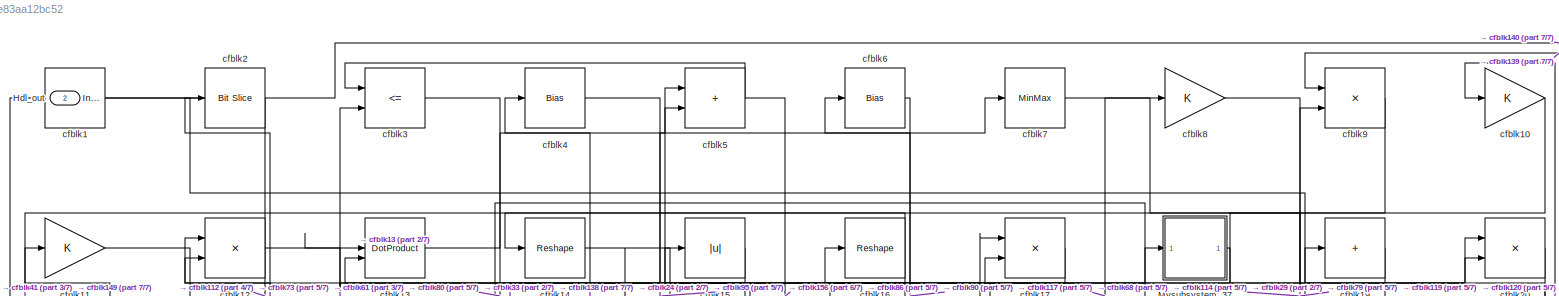
[diagram: root canvas - part 1/7, full width, top band]
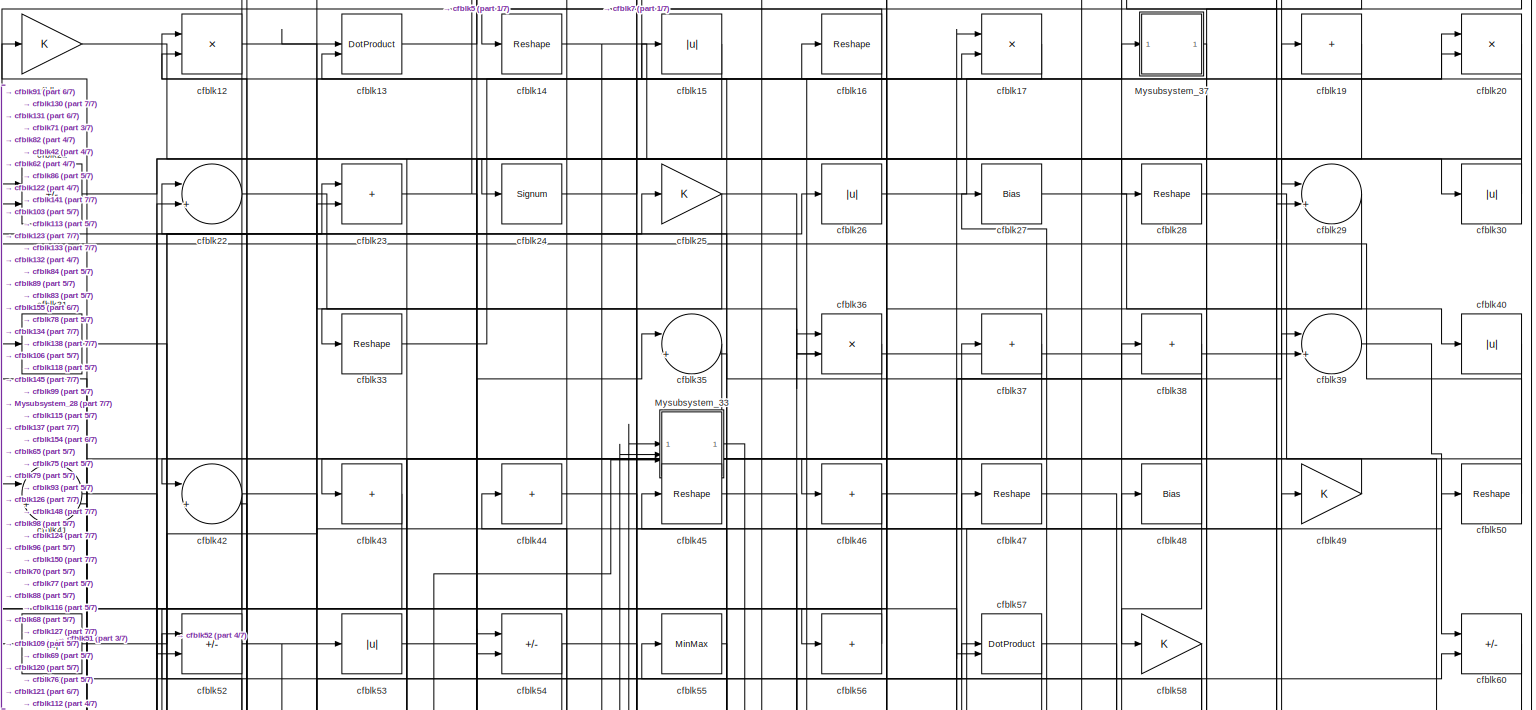
[diagram: root canvas - part 2/7, full width, top band]
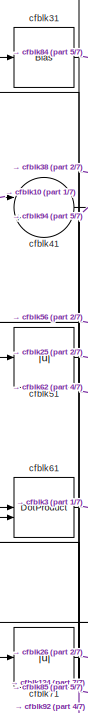
[diagram: root canvas - part 3/7, middle left region]
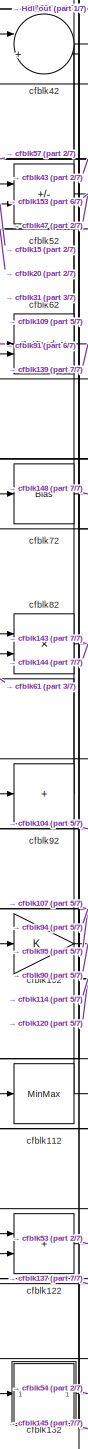
[diagram: root canvas - part 4/7, middle left region]
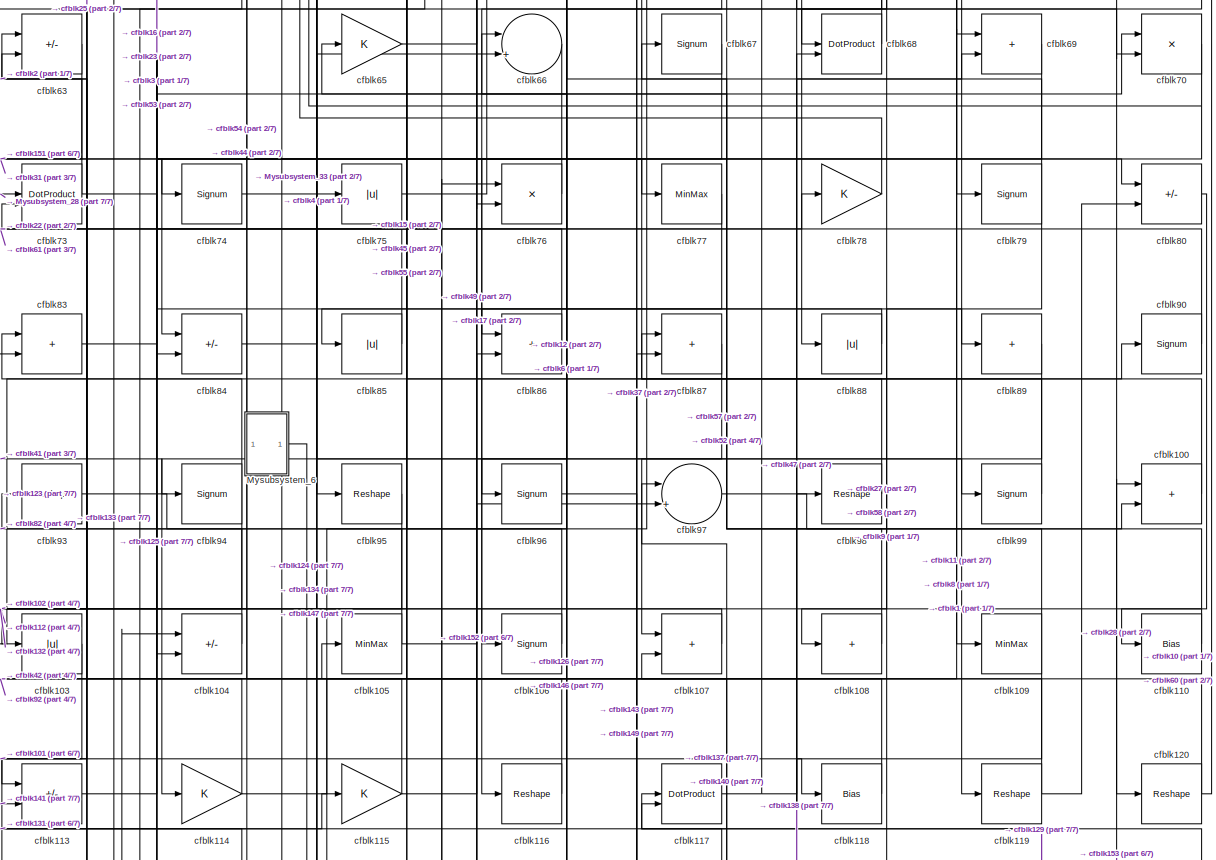
[diagram: root canvas - part 5/7, full width, middle band]
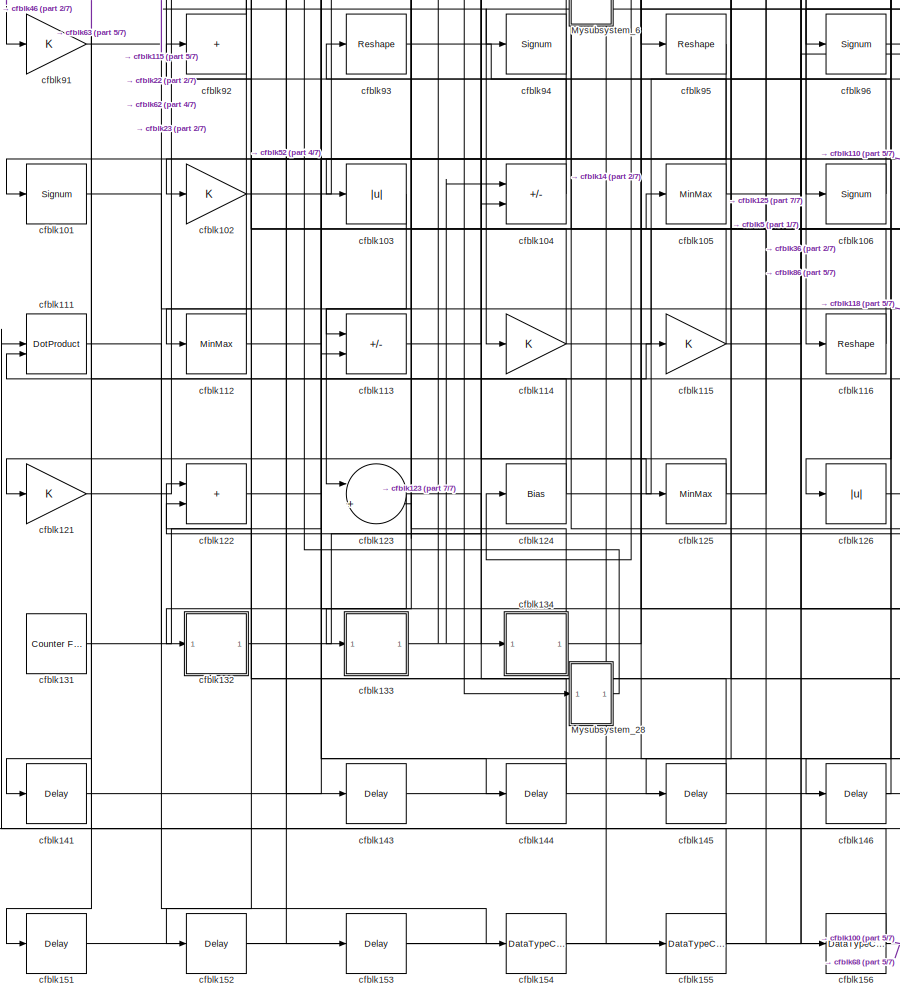
[diagram: root canvas - part 6/7, bottom left region]
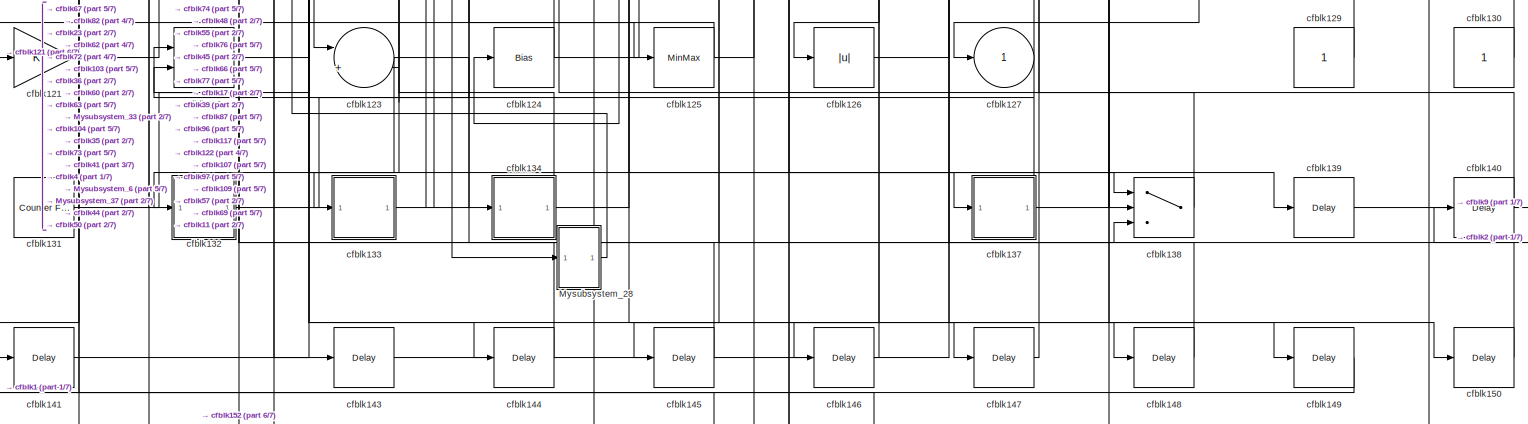
[diagram: root canvas - part 7/7, full width, bottom band]
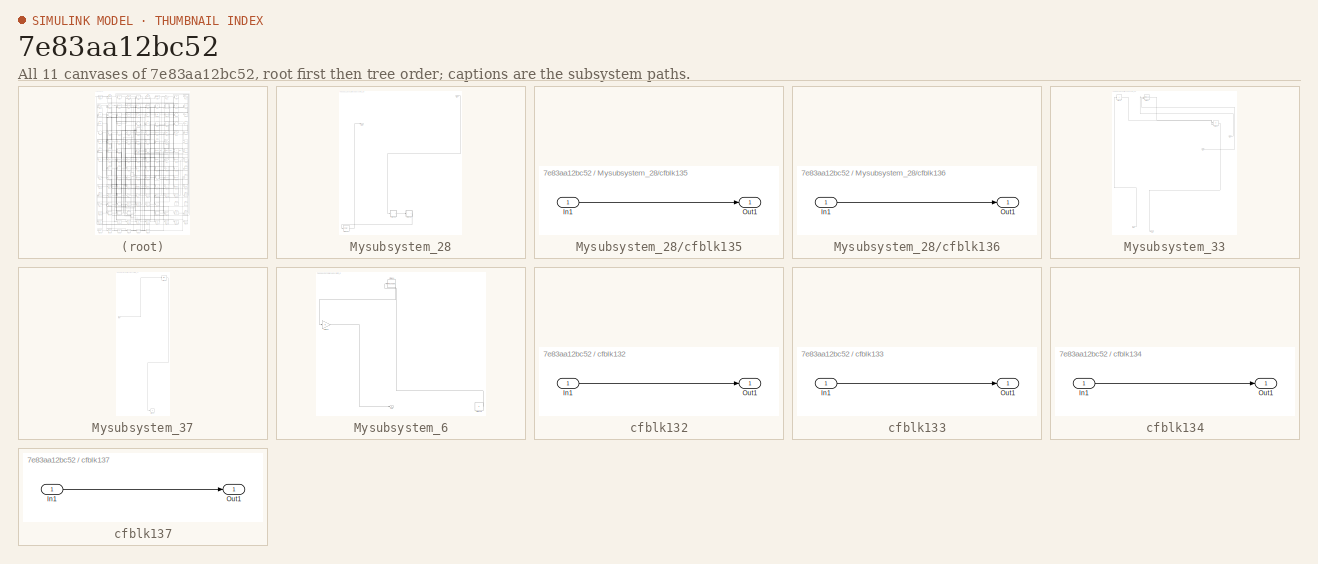
[diagram: thumbnail index - all 11 canvases of the model, root first then tree order]
MODEL slx_7e83aa12bc52
KIND model
CONFIG AbsTol = auto
CONFIG EnableMultiTasking = off
CONFIG FixedStep = auto
CONFIG MaxStep = auto
CONFIG MinStep = auto
CONFIG RelTol = 1e-3
CONFIG SampleTimeConstraint = Unconstrained
CONFIG SolverName = VariableStepAuto
CONFIG StartTime = 0.0
CONFIG StopTime = 10.0
BLOCK [Outport] Hdl_out
  OutDataTypeStr = uint8
  Port = 2
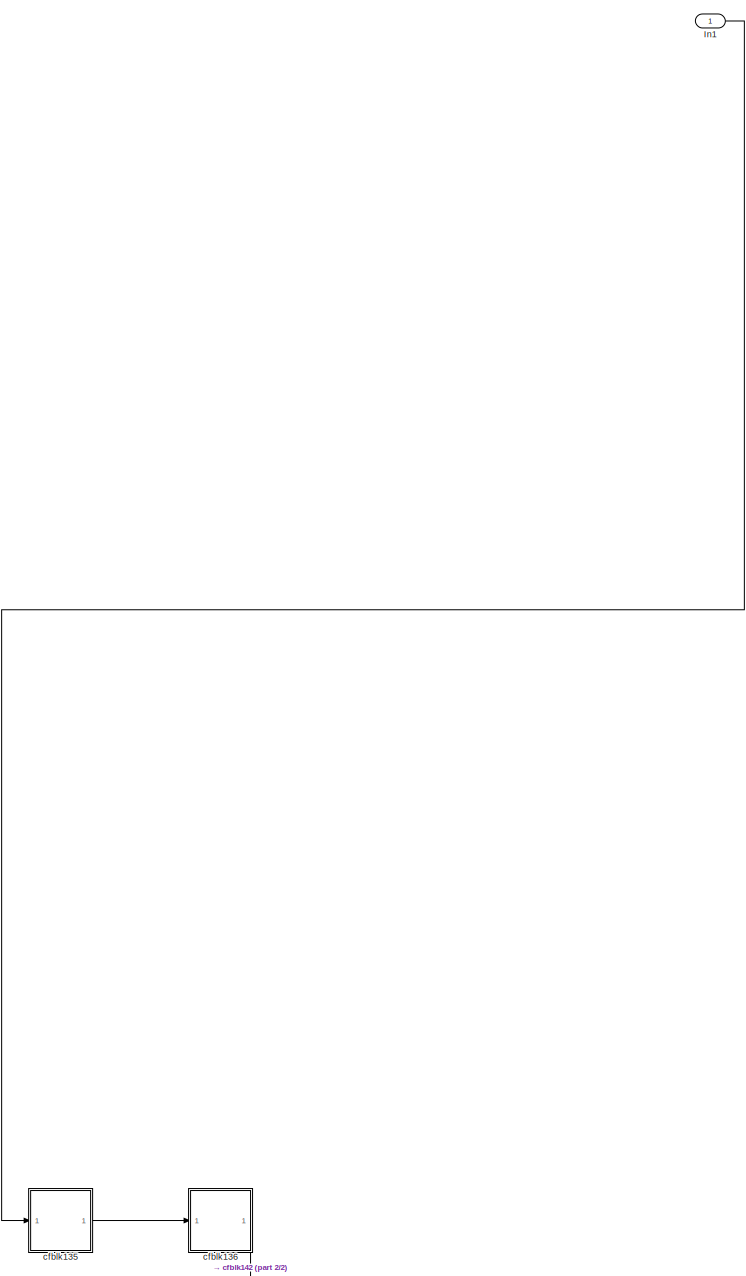
[diagram: Mysubsystem_28 - part 1/2, right side, full height]
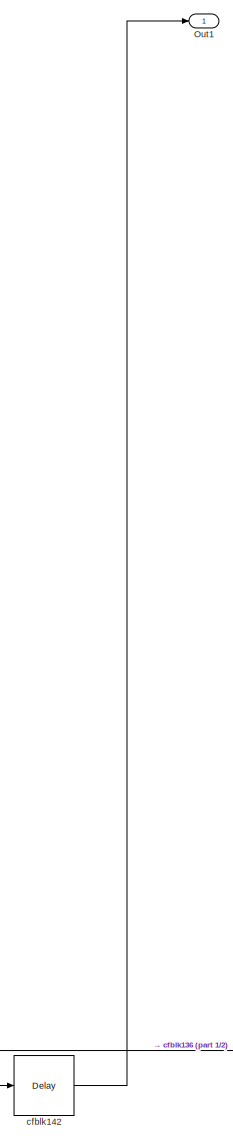
[diagram: Mysubsystem_28 - part 2/2, left side, full height]
BLOCK [SubSystem] Mysubsystem_28
  RTWFcnName = Mysubsystem_28
  RTWFcnNameOpts = User specified
  RTWFileNameOpts = Use function name
  RTWSystemCode = Reusable function
  TreatAsAtomicUnit = on
BLOCK [Inport] Mysubsystem_28/In1
BLOCK [Outport] Mysubsystem_28/Out1
BLOCK [SubSystem] Mysubsystem_28/cfblk135
  LibrarySourceBlock = hdlsllib/Ports &\nSubsystems/Subsystem
BLOCK [Inport] Mysubsystem_28/cfblk135/In1
BLOCK [Outport] Mysubsystem_28/cfblk135/Out1
BLOCK [SubSystem] Mysubsystem_28/cfblk136
  LibrarySourceBlock = hdlsllib/Ports &\nSubsystems/Subsystem
BLOCK [Inport] Mysubsystem_28/cfblk136/In1
BLOCK [Outport] Mysubsystem_28/cfblk136/Out1
BLOCK [Delay] Mysubsystem_28/cfblk142
  InputPortMap = u0
  SampleTime = 1
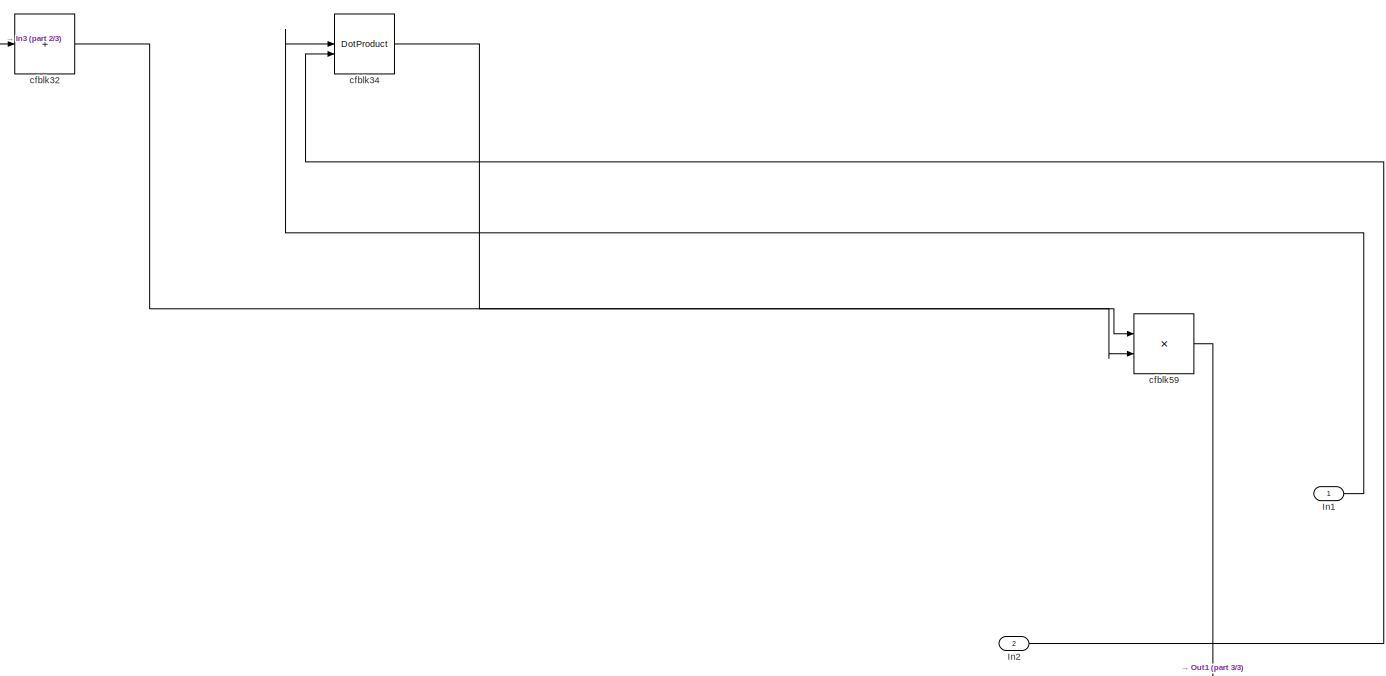
[diagram: Mysubsystem_33 - part 1/3, full width, top band]
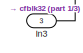
[diagram: Mysubsystem_33 - part 2/3, bottom left region]
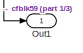
[diagram: Mysubsystem_33 - part 3/3, bottom left region]
BLOCK [SubSystem] Mysubsystem_33
  RTWFcnName = Mysubsystem_33
  RTWFcnNameOpts = User specified
  RTWFileNameOpts = Use function name
  RTWSystemCode = Reusable function
  TreatAsAtomicUnit = on
BLOCK [Inport] Mysubsystem_33/In1
BLOCK [Inport] Mysubsystem_33/In2
  Port = 2
BLOCK [Inport] Mysubsystem_33/In3
  Port = 3
BLOCK [Outport] Mysubsystem_33/Out1
BLOCK [Sum] Mysubsystem_33/cfblk32
  IconShape = rectangular
  Inputs = +
BLOCK [DotProduct] Mysubsystem_33/cfblk34
  OutDataTypeStr = Inherit: Inherit via internal rule
BLOCK [Product] Mysubsystem_33/cfblk59
  Inputs = */
  RndMeth = Zero
  SaturateOnIntegerOverflow = on
BLOCK [SubSystem] Mysubsystem_37
  RTWFcnName = Mysubsystem_37
  RTWFcnNameOpts = User specified
  RTWFileNameOpts = Use function name
  RTWSystemCode = Reusable function
  TreatAsAtomicUnit = on
BLOCK [Inport] Mysubsystem_37/In1
BLOCK [Outport] Mysubsystem_37/cfblk127
  VectorParamsAs1DForOutWhenUnconnected = off
BLOCK [Bias] Mysubsystem_37/cfblk18
  Bias = 0.0
  SaturateOnIntegerOverflow = off
BLOCK [SubSystem] Mysubsystem_6
  RTWFcnName = Mysubsystem_6
  RTWFcnNameOpts = User specified
  RTWFileNameOpts = Use function name
  RTWSystemCode = Reusable function
  TreatAsAtomicUnit = on
BLOCK [Outport] Mysubsystem_6/Out1
BLOCK [Constant] Mysubsystem_6/cfblk128
  SampleTime = -1
BLOCK [Reshape] Mysubsystem_6/cfblk64
BLOCK [Gain] Mysubsystem_6/cfblk81
BLOCK [Reference] cfblk1  REF=simulink/Logic and Bit
Operations/Detect
Increase
  LibrarySourceBlock = hdlsllib/Logic and Bit\nOperations/Detect\nIncrease
  SourceBlock = simulink/Logic and Bit\nOperations/Detect\nIncrease
  SourceType = Detect Increase
BLOCK [Gain] cfblk10
  OutDataTypeStr = uint8
BLOCK [Sum] cfblk100
  IconShape = rectangular
  OutDataTypeStr = uint8
BLOCK [Signum] cfblk101
BLOCK [Gain] cfblk102
  OutDataTypeStr = uint8
BLOCK [Abs] cfblk103
  OutDataTypeStr = uint8
  SaturateOnIntegerOverflow = off
BLOCK [Sum] cfblk104
  IconShape = rectangular
  Inputs = +-
  OutDataTypeStr = uint8
BLOCK [MinMax] cfblk105
  OutDataTypeStr = uint8
BLOCK [Signum] cfblk106
BLOCK [Sum] cfblk107
  IconShape = rectangular
  OutDataTypeStr = uint8
BLOCK [Sum] cfblk108
  IconShape = rectangular
  Inputs = +
  OutDataTypeStr = uint8
BLOCK [MinMax] cfblk109
  OutDataTypeStr = uint8
BLOCK [Gain] cfblk11
  OutDataTypeStr = uint8
BLOCK [Bias] cfblk110
  Bias = 0.0
  SaturateOnIntegerOverflow = off
BLOCK [DotProduct] cfblk111
  OutDataTypeStr = uint8
BLOCK [MinMax] cfblk112
  OutDataTypeStr = uint8
BLOCK [Sum] cfblk113
  IconShape = rectangular
  Inputs = +-
  OutDataTypeStr = uint8
BLOCK [Gain] cfblk114
  OutDataTypeStr = uint8
BLOCK [Gain] cfblk115
  OutDataTypeStr = uint8
BLOCK [Reshape] cfblk116
BLOCK [DotProduct] cfblk117
  OutDataTypeStr = uint8
BLOCK [Bias] cfblk118
  Bias = 0.0
  SaturateOnIntegerOverflow = off
BLOCK [Reshape] cfblk119
BLOCK [Product] cfblk12
  Inputs = */
  OutDataTypeStr = uint8
  RndMeth = Zero
  SaturateOnIntegerOverflow = on
BLOCK [Reshape] cfblk120
BLOCK [Gain] cfblk121
  OutDataTypeStr = uint8
BLOCK [Sum] cfblk122
  IconShape = rectangular
  OutDataTypeStr = uint8
BLOCK [Sum] cfblk123
  Inputs = |++
  OutDataTypeStr = uint8
BLOCK [Bias] cfblk124
  Bias = 0.0
  SaturateOnIntegerOverflow = off
BLOCK [MinMax] cfblk125
  OutDataTypeStr = uint8
BLOCK [Abs] cfblk126
  OutDataTypeStr = uint8
  SaturateOnIntegerOverflow = off
BLOCK [Outport] cfblk127
  OutDataTypeStr = uint8
  VectorParamsAs1DForOutWhenUnconnected = off
BLOCK [Constant] cfblk129
  OutDataTypeStr = uint8
  SampleTime = -1
BLOCK [DotProduct] cfblk13
  OutDataTypeStr = uint8
BLOCK [Constant] cfblk130
  OutDataTypeStr = uint8
  SampleTime = -1
BLOCK [Reference] cfblk131  REF=hdlsllib/Sources/Counter
Free-Running
  SourceBlock = hdlsllib/Sources/Counter\nFree-Running
  SourceType = Counter Free-Running
BLOCK [SubSystem] cfblk132
  LibrarySourceBlock = hdlsllib/Ports &\nSubsystems/Subsystem
BLOCK [Inport] cfblk132/In1
BLOCK [Outport] cfblk132/Out1
BLOCK [SubSystem] cfblk133
  LibrarySourceBlock = hdlsllib/Ports &\nSubsystems/Subsystem
BLOCK [Inport] cfblk133/In1
BLOCK [Outport] cfblk133/Out1
BLOCK [SubSystem] cfblk134
  LibrarySourceBlock = hdlsllib/Ports &\nSubsystems/Subsystem
BLOCK [Inport] cfblk134/In1
BLOCK [Outport] cfblk134/Out1
BLOCK [SubSystem] cfblk137
  LibrarySourceBlock = hdlsllib/Ports &\nSubsystems/Subsystem
BLOCK [Inport] cfblk137/In1
BLOCK [Outport] cfblk137/Out1
BLOCK [Switch] cfblk138
  InputSameDT = off
  OutDataTypeStr = uint8
  SaturateOnIntegerOverflow = off
BLOCK [Delay] cfblk139
  InputPortMap = u0
  SampleTime = 1
BLOCK [Reshape] cfblk14
BLOCK [Delay] cfblk140
  InputPortMap = u0
  SampleTime = 1
BLOCK [Delay] cfblk141
  InputPortMap = u0
  SampleTime = 1
BLOCK [Delay] cfblk143
  InputPortMap = u0
  SampleTime = 1
BLOCK [Delay] cfblk144
  InputPortMap = u0
  SampleTime = 1
BLOCK [Delay] cfblk145
  InputPortMap = u0
  SampleTime = 1
BLOCK [Delay] cfblk146
  InputPortMap = u0
  SampleTime = 1
BLOCK [Delay] cfblk147
  InputPortMap = u0
  SampleTime = 1
BLOCK [Delay] cfblk148
  InputPortMap = u0
  SampleTime = 1
BLOCK [Delay] cfblk149
  InputPortMap = u0
  SampleTime = 1
BLOCK [Abs] cfblk15
  OutDataTypeStr = uint8
  SaturateOnIntegerOverflow = off
BLOCK [Delay] cfblk150
  InputPortMap = u0
  SampleTime = 1
BLOCK [Delay] cfblk151
  InputPortMap = u0
  SampleTime = 1
BLOCK [Delay] cfblk152
  InputPortMap = u0
  SampleTime = 1
BLOCK [Delay] cfblk153
  InputPortMap = u0
  SampleTime = 1
BLOCK [DataTypeConversion] cfblk154
  OutDataTypeStr = uint8
  RndMeth = Floor
  SaturateOnIntegerOverflow = off
BLOCK [DataTypeConversion] cfblk155
  OutDataTypeStr = uint8
  RndMeth = Floor
  SaturateOnIntegerOverflow = off
BLOCK [DataTypeConversion] cfblk156
  OutDataTypeStr = uint8
  RndMeth = Floor
  SaturateOnIntegerOverflow = off
BLOCK [Reshape] cfblk16
BLOCK [Product] cfblk17
  Inputs = */
  OutDataTypeStr = uint8
  RndMeth = Zero
  SaturateOnIntegerOverflow = on
BLOCK [Sum] cfblk19
  IconShape = rectangular
  Inputs = +
  OutDataTypeStr = uint8
BLOCK [Reference] cfblk2  REF=hdlsllib/Logic and Bit
Operations/Bit Slice
  SourceBlock = hdlsllib/Logic and Bit\nOperations/Bit Slice
  SourceType = Bit Slice
BLOCK [Product] cfblk20
  Inputs = */
  OutDataTypeStr = uint8
  RndMeth = Zero
  SaturateOnIntegerOverflow = on
BLOCK [Sum] cfblk21
  IconShape = rectangular
  Inputs = +-
  OutDataTypeStr = uint8
BLOCK [Sum] cfblk22
  Inputs = |++
  OutDataTypeStr = uint8
BLOCK [Sum] cfblk23
  IconShape = rectangular
  OutDataTypeStr = uint8
BLOCK [Signum] cfblk24
BLOCK [Gain] cfblk25
  OutDataTypeStr = uint8
BLOCK [Abs] cfblk26
  OutDataTypeStr = uint8
  SaturateOnIntegerOverflow = off
BLOCK [Bias] cfblk27
  Bias = 0.0
  SaturateOnIntegerOverflow = off
BLOCK [Reshape] cfblk28
BLOCK [Sum] cfblk29
  Inputs = |++
  OutDataTypeStr = uint8
BLOCK [RelationalOperator] cfblk3
  InputSameDT = off
  Operator = <=
  OutDataTypeStr = boolean
BLOCK [Abs] cfblk30
  OutDataTypeStr = uint8
  SaturateOnIntegerOverflow = off
BLOCK [Bias] cfblk31
  Bias = 0.0
  SaturateOnIntegerOverflow = off
BLOCK [Reshape] cfblk33
BLOCK [Sum] cfblk35
  Inputs = |++
  OutDataTypeStr = uint8
BLOCK [Product] cfblk36
  Inputs = */
  OutDataTypeStr = uint8
  RndMeth = Zero
  SaturateOnIntegerOverflow = on
BLOCK [Sum] cfblk37
  IconShape = rectangular
  Inputs = +
  OutDataTypeStr = uint8
BLOCK [Sum] cfblk38
  IconShape = rectangular
  Inputs = +
  OutDataTypeStr = uint8
BLOCK [Sum] cfblk39
  Inputs = |++
  OutDataTypeStr = uint8
BLOCK [Bias] cfblk4
  Bias = 0.0
  SaturateOnIntegerOverflow = off
BLOCK [Abs] cfblk40
  OutDataTypeStr = uint8
  SaturateOnIntegerOverflow = off
BLOCK [Sum] cfblk41
  Inputs = |++
  OutDataTypeStr = uint8
BLOCK [Sum] cfblk42
  Inputs = |++
  OutDataTypeStr = uint8
BLOCK [Sum] cfblk43
  IconShape = rectangular
  Inputs = +
  OutDataTypeStr = uint8
BLOCK [Sum] cfblk44
  IconShape = rectangular
  Inputs = +
  OutDataTypeStr = uint8
BLOCK [Reshape] cfblk45
BLOCK [Sum] cfblk46
  IconShape = rectangular
  Inputs = +
  OutDataTypeStr = uint8
BLOCK [Reshape] cfblk47
BLOCK [Bias] cfblk48
  Bias = 0.0
  SaturateOnIntegerOverflow = off
BLOCK [Gain] cfblk49
  OutDataTypeStr = uint8
BLOCK [Sum] cfblk5
  IconShape = rectangular
  OutDataTypeStr = uint8
BLOCK [Reshape] cfblk50
BLOCK [Abs] cfblk51
  OutDataTypeStr = uint8
  SaturateOnIntegerOverflow = off
BLOCK [Sum] cfblk52
  IconShape = rectangular
  Inputs = +-
  OutDataTypeStr = uint8
BLOCK [Abs] cfblk53
  OutDataTypeStr = uint8
  SaturateOnIntegerOverflow = off
BLOCK [Sum] cfblk54
  IconShape = rectangular
  Inputs = +-
  OutDataTypeStr = uint8
BLOCK [MinMax] cfblk55
  OutDataTypeStr = uint8
BLOCK [Sum] cfblk56
  IconShape = rectangular
  Inputs = +
  OutDataTypeStr = uint8
BLOCK [DotProduct] cfblk57
  OutDataTypeStr = uint8
BLOCK [Gain] cfblk58
  OutDataTypeStr = uint8
BLOCK [Bias] cfblk6
  Bias = 0.0
  SaturateOnIntegerOverflow = off
BLOCK [Sum] cfblk60
  IconShape = rectangular
  Inputs = +-
  OutDataTypeStr = uint8
BLOCK [DotProduct] cfblk61
  OutDataTypeStr = uint8
BLOCK [DotProduct] cfblk62
  OutDataTypeStr = uint8
BLOCK [Sum] cfblk63
  IconShape = rectangular
  Inputs = +-
  OutDataTypeStr = uint8
BLOCK [Gain] cfblk65
  OutDataTypeStr = uint8
BLOCK [Sum] cfblk66
  Inputs = |++
  OutDataTypeStr = uint8
BLOCK [Signum] cfblk67
BLOCK [DotProduct] cfblk68
  OutDataTypeStr = uint8
BLOCK [Sum] cfblk69
  IconShape = rectangular
  OutDataTypeStr = uint8
BLOCK [MinMax] cfblk7
  OutDataTypeStr = uint8
BLOCK [Product] cfblk70
  Inputs = */
  OutDataTypeStr = uint8
  RndMeth = Zero
  SaturateOnIntegerOverflow = on
BLOCK [Abs] cfblk71
  OutDataTypeStr = uint8
  SaturateOnIntegerOverflow = off
BLOCK [Bias] cfblk72
  Bias = 0.0
  SaturateOnIntegerOverflow = off
BLOCK [DotProduct] cfblk73
  OutDataTypeStr = uint8
BLOCK [Signum] cfblk74
BLOCK [Abs] cfblk75
  OutDataTypeStr = uint8
  SaturateOnIntegerOverflow = off
BLOCK [Product] cfblk76
  Inputs = */
  OutDataTypeStr = uint8
  RndMeth = Zero
  SaturateOnIntegerOverflow = on
BLOCK [MinMax] cfblk77
  OutDataTypeStr = uint8
BLOCK [Gain] cfblk78
  OutDataTypeStr = uint8
BLOCK [Signum] cfblk79
BLOCK [Gain] cfblk8
  OutDataTypeStr = uint8
BLOCK [Sum] cfblk80
  IconShape = rectangular
  Inputs = +-
  OutDataTypeStr = uint8
BLOCK [Product] cfblk82
  Inputs = */
  OutDataTypeStr = uint8
  RndMeth = Zero
  SaturateOnIntegerOverflow = on
BLOCK [Sum] cfblk83
  IconShape = rectangular
  OutDataTypeStr = uint8
BLOCK [Sum] cfblk84
  IconShape = rectangular
  Inputs = +-
  OutDataTypeStr = uint8
BLOCK [Abs] cfblk85
  OutDataTypeStr = uint8
  SaturateOnIntegerOverflow = off
BLOCK [Sum] cfblk86
  IconShape = rectangular
  OutDataTypeStr = uint8
BLOCK [Sum] cfblk87
  IconShape = rectangular
  OutDataTypeStr = uint8
BLOCK [Abs] cfblk88
  OutDataTypeStr = uint8
  SaturateOnIntegerOverflow = off
BLOCK [Sum] cfblk89
  IconShape = rectangular
  Inputs = +
  OutDataTypeStr = uint8
BLOCK [Product] cfblk9
  Inputs = */
  OutDataTypeStr = uint8
  RndMeth = Zero
  SaturateOnIntegerOverflow = on
BLOCK [Signum] cfblk90
BLOCK [Gain] cfblk91
  OutDataTypeStr = uint8
BLOCK [Sum] cfblk92
  IconShape = rectangular
  Inputs = +
  OutDataTypeStr = uint8
BLOCK [Reshape] cfblk93
BLOCK [Signum] cfblk94
BLOCK [Reshape] cfblk95
BLOCK [Signum] cfblk96
BLOCK [Sum] cfblk97
  Inputs = |++
  OutDataTypeStr = uint8
BLOCK [Reshape] cfblk98
BLOCK [Signum] cfblk99
LINE Mysubsystem_28/In1:1 -> Mysubsystem_28/cfblk135:1
LINE Mysubsystem_28/cfblk135/In1:1 -> Mysubsystem_28/cfblk135/Out1:1
LINE Mysubsystem_28/cfblk135:1 -> Mysubsystem_28/cfblk136:1
LINE Mysubsystem_28/cfblk136/In1:1 -> Mysubsystem_28/cfblk136/Out1:1
LINE Mysubsystem_28/cfblk136:1 -> Mysubsystem_28/cfblk142:1
LINE Mysubsystem_28/cfblk142:1 -> Mysubsystem_28/Out1:1
LINE Mysubsystem_28:1 -> cfblk73:1
LINE Mysubsystem_33/In1:1 -> Mysubsystem_33/cfblk34:1
LINE Mysubsystem_33/In2:1 -> Mysubsystem_33/cfblk34:2
LINE Mysubsystem_33/In3:1 -> Mysubsystem_33/cfblk32:1
LINE Mysubsystem_33/cfblk32:1 -> Mysubsystem_33/cfblk59:2
LINE Mysubsystem_33/cfblk34:1 -> Mysubsystem_33/cfblk59:1
LINE Mysubsystem_33/cfblk59:1 -> Mysubsystem_33/Out1:1
LINE Mysubsystem_33:1 -> Mysubsystem_28:1
LINE Mysubsystem_37/In1:1 -> Mysubsystem_37/cfblk18:1
LINE Mysubsystem_37/cfblk18:1 -> Mysubsystem_37/cfblk127:1
LINE Mysubsystem_37:1 -> cfblk127:1
LINE Mysubsystem_6/cfblk128:1 -> Mysubsystem_6/cfblk64:1
LINE Mysubsystem_6/cfblk64:1 -> Mysubsystem_6/cfblk81:1
LINE Mysubsystem_6/cfblk81:1 -> Mysubsystem_6/Out1:1
LINE Mysubsystem_6:1 -> cfblk124:1
LINE cfblk100:1 -> cfblk87:1
LINE cfblk101:1 -> cfblk118:1
LINE cfblk102:1 -> cfblk90:1
LINE cfblk103:1 -> cfblk123:1
LINE cfblk104:1 -> cfblk82:1
NET cfblk105:1 -> cfblk63:2, cfblk97:2
LINE cfblk106:1 -> cfblk45:1
LINE cfblk107:1 -> cfblk102:1
LINE cfblk108:1 -> cfblk65:1
NET cfblk109:1 -> cfblk138:2, cfblk52:1
LINE cfblk10:1 -> cfblk41:1
NET cfblk110:1 -> cfblk101:1, cfblk67:1
LINE cfblk111:1 -> cfblk154:1
NET cfblk112:1 -> Hdl_out:1, cfblk57:1
LINE cfblk113:1 -> cfblk70:1
NET cfblk114:1 -> cfblk92:1, cfblk9:2
NET cfblk115:1 -> cfblk12:1, cfblk60:2
LINE cfblk116:1 -> cfblk44:1
NET cfblk117:1 -> cfblk8:1, cfblk98:1
LINE cfblk118:1 -> cfblk55:1
NET cfblk119:1 -> cfblk105:1, cfblk80:2, cfblk93:1
NET cfblk11:1 -> cfblk109:1, cfblk69:1
NET cfblk120:1 -> cfblk10:1, cfblk42:2
LINE cfblk121:1 -> cfblk23:1
LINE cfblk122:1 -> cfblk53:1
NET cfblk123:1 -> cfblk134:1, cfblk152:1
NET cfblk124:1 -> cfblk41:2, cfblk48:1
NET cfblk125:1 -> cfblk121:1, cfblk76:1
LINE cfblk126:1 -> cfblk39:1
LINE cfblk129:1 -> cfblk117:1
NET cfblk12:1 -> cfblk13:1, cfblk36:2
LINE cfblk130:1 -> cfblk11:1
NET cfblk131:1 -> cfblk115:1, cfblk22:2
LINE cfblk132/In1:1 -> cfblk132/Out1:1
LINE cfblk132:1 -> cfblk54:1
LINE cfblk133/In1:1 -> cfblk133/Out1:1
NET cfblk133:1 -> Mysubsystem_33:3, cfblk104:1, cfblk138:3, cfblk35:1
LINE cfblk134/In1:1 -> cfblk134/Out1:1
NET cfblk134:1 -> Mysubsystem_37:1, cfblk50:1, cfblk63:1
LINE cfblk137/In1:1 -> cfblk137/Out1:1
NET cfblk137:1 -> cfblk117:2, cfblk122:1, cfblk69:2
LINE cfblk138:1 -> cfblk4:1
LINE cfblk139:1 -> cfblk9:1
LINE cfblk13:1 -> cfblk5:1
LINE cfblk140:1 -> cfblk97:1
LINE cfblk141:1 -> cfblk23:2
LINE cfblk143:1 -> cfblk87:2
LINE cfblk144:1 -> cfblk62:2
LINE cfblk145:1 -> cfblk122:2
LINE cfblk146:1 -> cfblk66:1
LINE cfblk147:1 -> cfblk107:2
LINE cfblk148:1 -> cfblk17:1
LINE cfblk149:1 -> cfblk1:1
NET cfblk14:1 -> cfblk155:1, cfblk28:1
LINE cfblk150:1 -> cfblk35:2
LINE cfblk151:1 -> cfblk68:2
LINE cfblk152:1 -> cfblk86:2
LINE cfblk153:1 -> cfblk100:1
LINE cfblk154:1 -> cfblk36:1
LINE cfblk155:1 -> cfblk111:1
LINE cfblk156:1 -> cfblk111:2
NET cfblk15:1 -> cfblk33:1, cfblk52:2
NET cfblk16:1 -> cfblk14:1, cfblk84:2
LINE cfblk17:1 -> cfblk13:2
LINE cfblk19:1 -> cfblk29:1
LINE cfblk1:1 -> cfblk119:1
LINE cfblk20:1 -> cfblk54:2
LINE cfblk21:1 -> cfblk30:1
LINE cfblk22:1 -> cfblk75:1
NET cfblk23:1 -> cfblk77:1, cfblk88:1
LINE cfblk24:1 -> cfblk7:1
NET cfblk25:1 -> cfblk113:1, cfblk39:2
LINE cfblk26:1 -> cfblk20:1
LINE cfblk27:1 -> cfblk40:1
LINE cfblk28:1 -> cfblk120:1
LINE cfblk29:1 -> cfblk56:1
LINE cfblk2:1 -> cfblk140:1
NET cfblk30:1 -> cfblk19:1, cfblk24:1
LINE cfblk31:1 -> cfblk84:1
LINE cfblk33:1 -> cfblk5:2
LINE cfblk35:1 -> cfblk42:1
LINE cfblk36:1 -> cfblk123:2
LINE cfblk37:1 -> cfblk103:1
LINE cfblk38:1 -> cfblk71:1
LINE cfblk39:1 -> cfblk60:1
LINE cfblk3:1 -> cfblk80:1
LINE cfblk40:1 -> cfblk46:1
LINE cfblk41:1 -> cfblk94:1
NET cfblk42:1 -> cfblk57:2, cfblk72:1
LINE cfblk43:1 -> cfblk82:2
LINE cfblk44:1 -> cfblk138:1
LINE cfblk45:1 -> cfblk137:1
NET cfblk46:1 -> cfblk38:1, cfblk91:1
LINE cfblk47:1 -> cfblk70:2
NET cfblk48:1 -> cfblk21:2, cfblk58:1
LINE cfblk49:1 -> cfblk43:1
LINE cfblk4:1 -> cfblk95:1
LINE cfblk50:1 -> cfblk21:1
LINE cfblk51:1 -> cfblk25:1
NET cfblk52:1 -> cfblk153:1, cfblk47:1
LINE cfblk53:1 -> cfblk89:1
NET cfblk54:1 -> cfblk83:2, cfblk99:1
LINE cfblk55:1 -> cfblk145:1
LINE cfblk56:1 -> cfblk51:1
NET cfblk57:1 -> cfblk150:1, cfblk96:1
LINE cfblk58:1 -> cfblk116:1
NET cfblk5:1 -> cfblk156:1, cfblk3:1
NET cfblk60:1 -> cfblk133:1, cfblk76:2
LINE cfblk61:1 -> cfblk3:2
NET cfblk62:1 -> cfblk139:1, cfblk20:2, cfblk31:1
LINE cfblk63:1 -> cfblk151:1
LINE cfblk65:1 -> cfblk49:1
LINE cfblk66:1 -> cfblk106:1
NET cfblk67:1 -> cfblk113:2, cfblk141:1
LINE cfblk68:1 -> cfblk27:1
LINE cfblk69:1 -> cfblk126:1
LINE cfblk6:1 -> cfblk86:1
NET cfblk70:1 -> Mysubsystem_33:1, cfblk104:2
LINE cfblk71:1 -> cfblk26:1
LINE cfblk72:1 -> cfblk148:1
NET cfblk73:1 -> cfblk125:1, cfblk2:1
LINE cfblk74:1 -> cfblk147:1
LINE cfblk75:1 -> cfblk17:2
LINE cfblk76:1 -> cfblk74:1
LINE cfblk77:1 -> cfblk146:1
LINE cfblk78:1 -> Mysubsystem_33:2
NET cfblk79:1 -> cfblk108:1, cfblk12:2
LINE cfblk7:1 -> cfblk29:2
LINE cfblk80:1 -> cfblk110:1
NET cfblk82:1 -> cfblk143:1, cfblk144:1
LINE cfblk83:1 -> cfblk78:1
LINE cfblk84:1 -> cfblk66:2
LINE cfblk85:1 -> cfblk61:2
LINE cfblk86:1 -> cfblk22:1
LINE cfblk87:1 -> cfblk114:1
LINE cfblk88:1 -> cfblk85:1
LINE cfblk89:1 -> cfblk107:1
LINE cfblk8:1 -> cfblk79:1
NET cfblk90:1 -> cfblk6:1, cfblk73:2
LINE cfblk91:1 -> cfblk62:1
LINE cfblk92:1 -> cfblk61:1
LINE cfblk93:1 -> cfblk16:1
NET cfblk94:1 -> cfblk132:1, cfblk83:1
LINE cfblk95:1 -> cfblk112:1
LINE cfblk96:1 -> cfblk149:1
LINE cfblk97:1 -> cfblk100:2
LINE cfblk98:1 -> cfblk37:1
LINE cfblk99:1 -> cfblk15:1
LINE cfblk9:1 -> cfblk68:1
note: NET lines group one-source signal fan-out (src -> all destinations, sorted); 1:1 wires keep LINE
